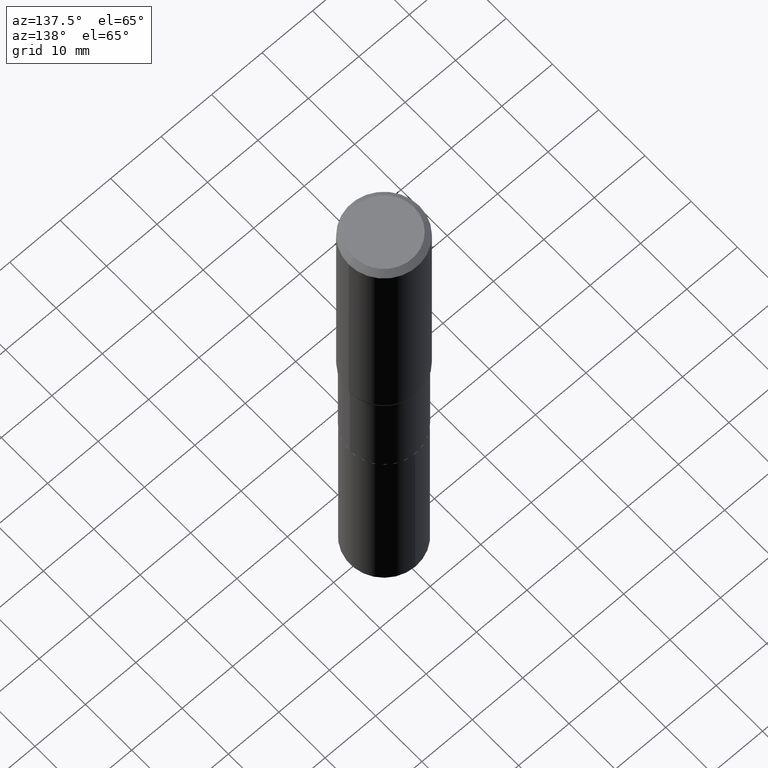
[diagram: clean part render]
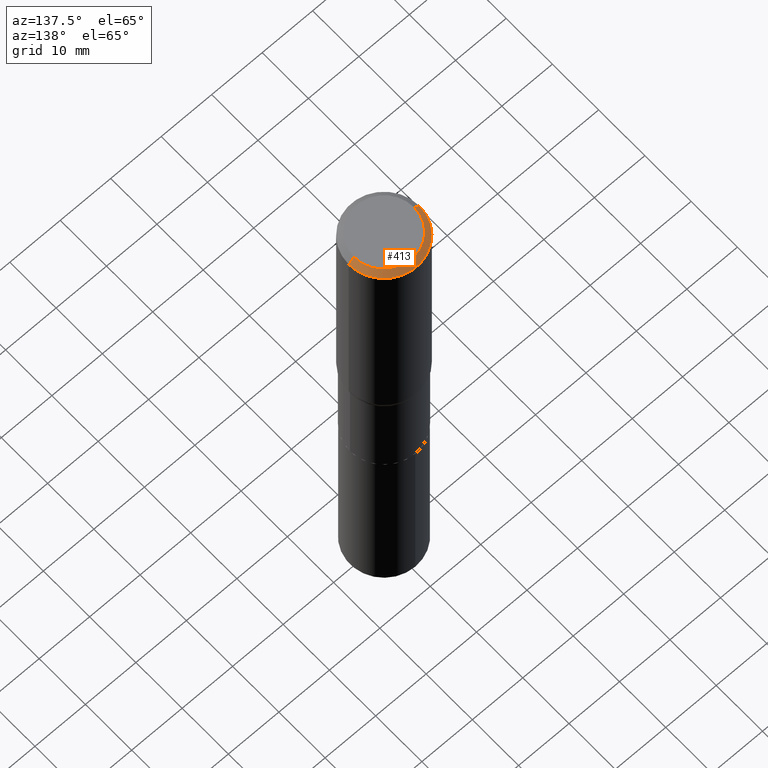
[diagram: same view with one face highlighted and labeled with its STEP entity id]
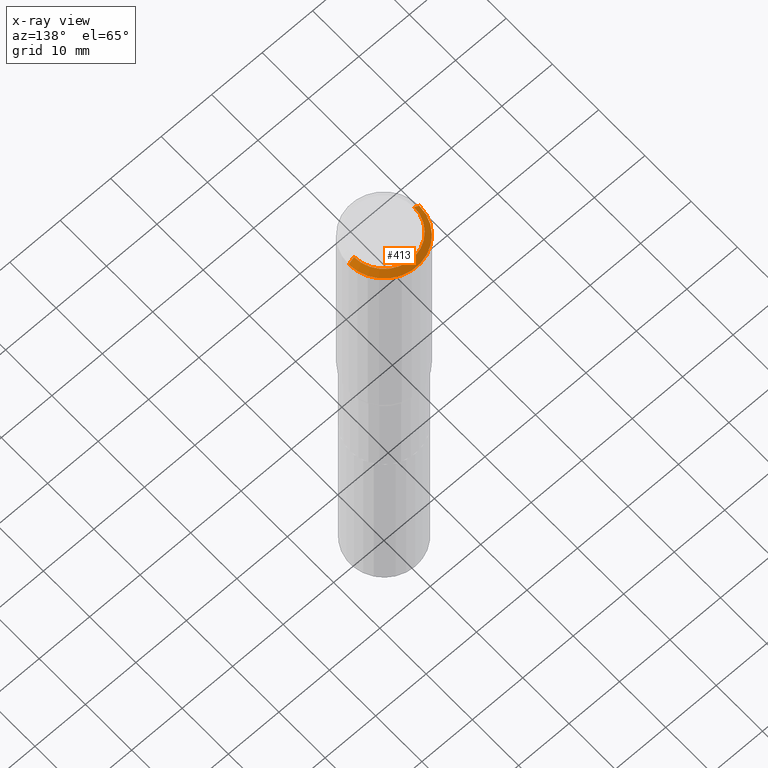
[diagram: x-ray of the same camera — body ghosted, the highlighted face saturated]
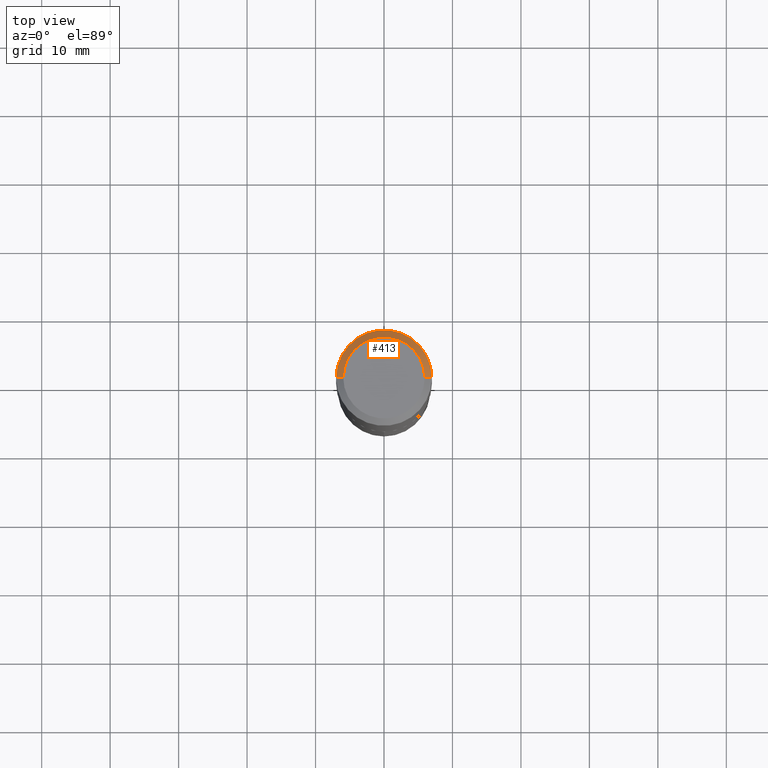
[diagram: same view with one face highlighted and labeled with its STEP entity id]
A machine part, auxiliary view. The second image highlights one B-rep face of the part: STEP entity #413.
The next image is the same camera in x-ray: the body ghosted, the highlighted face saturated — about 0% of this face is hidden behind the body in this view.
A second angle (top view) of the same face is appended — the face is thin or edge-on in the first view.
In plain terms, the highlighted conical surface has half-angle 45 deg.
Its self-contained STEP definition (entity closure, byte-faithful):
#12 = EDGE_CURVE ( 'NONE', #53, #420, #359, .T. ) ;
#19 = EDGE_CURVE ( 'NONE', #53, #399, #463, .T. ) ;
#30 = DIRECTION ( 'NONE',  ( -2.445468806185136597E-29, 3.491481338843145583E-15, 1.000000000000000000 ) ) ;
#34 = CARTESIAN_POINT ( 'NONE',  ( 0.2756000000000000116, -2.035091086733610886E-15, -0.04134000000000024461 ) ) ;
#53 = VERTEX_POINT ( 'NONE', #466 ) ;
#57 = ORIENTED_EDGE ( 'NONE', *, *, #19, .T. ) ;
#61 = DIRECTION ( 'NONE',  ( -1.000000000000000000, 6.982962677686267499E-15, 0.000000000000000000 ) ) ;
#69 = DIRECTION ( 'NONE',  ( 1.000000000000000000, -6.982962677686267499E-15, 4.876157962347795834E-29 ) ) ;
#77 = DIRECTION ( 'NONE',  ( -0.7071067811865453523, 2.468850131082234184E-15, -0.7071067811865496822 ) ) ;
#101 = CARTESIAN_POINT ( 'NONE',  ( 0.2756000000000000116, -2.068842352518111732E-15, -0.04134000000000024461 ) ) ;
#120 = LINE ( 'NONE', #299, #452 ) ;
#129 = EDGE_LOOP ( 'NONE', ( #353, #57, #203, #406 ) ) ;
#147 = AXIS2_PLACEMENT_3D ( 'NONE', #447, #352, #61 ) ;
#152 = DIRECTION ( 'NONE',  ( 0.7071067811865453523, -7.319954787623248157E-15, -0.7071067811865496822 ) ) ;
#167 = EDGE_CURVE ( 'NONE', #420, #377, #120, .T. ) ;
#173 = FACE_OUTER_BOUND ( 'NONE', #129, .T. ) ;
#174 = CARTESIAN_POINT ( 'NONE',  ( 1.010956804476941522E-30, -1.443378385477764823E-16, -0.04134000000000024461 ) ) ;
#202 = AXIS2_PLACEMENT_3D ( 'NONE', #174, #449, #354 ) ;
#203 = ORIENTED_EDGE ( 'NONE', *, *, #443, .T. ) ;
#207 = CARTESIAN_POINT ( 'NONE',  ( -0.2756000000000000116, -1.195966209894784176E-15, -0.04134000000000024461 ) ) ;
#257 = CONICAL_SURFACE ( 'NONE', #147, 0.2756000000000000116, 0.7853981633974452814 ) ;
#270 = AXIS2_PLACEMENT_3D ( 'NONE', #317, #30, #69 ) ;
#299 = CARTESIAN_POINT ( 'NONE',  ( -0.2756000000000000116, 1.780166675422558965E-15, -0.04134000000000024461 ) ) ;
#317 = CARTESIAN_POINT ( 'NONE',  ( -1.002970424325033577E-46, 1.431975951230896486E-32, 4.101342130344485961E-18 ) ) ;
#352 = DIRECTION ( 'NONE',  ( 2.445468806185136597E-29, -3.491481338843145583E-15, -1.000000000000000000 ) ) ;
#353 = ORIENTED_EDGE ( 'NONE', *, *, #12, .F. ) ;
#354 = DIRECTION ( 'NONE',  ( 1.000000000000000000, -6.982962677686267499E-15, 0.000000000000000000 ) ) ;
#359 = CIRCLE ( 'NONE', #270, 0.2342600000000000238 ) ;
#377 = VERTEX_POINT ( 'NONE', #207 ) ;
#398 = CIRCLE ( 'NONE', #202, 0.2756000000000000116 ) ;
#399 = VERTEX_POINT ( 'NONE', #101 ) ;
#406 = ORIENTED_EDGE ( 'NONE', *, *, #167, .F. ) ;
#413 = ADVANCED_FACE ( 'NONE', ( #173 ), #257, .T. ) ;
#419 = CARTESIAN_POINT ( 'NONE',  ( -0.2342600000000000238, 1.707997756148671759E-15, 4.101342130332794026E-18 ) ) ;
#420 = VERTEX_POINT ( 'NONE', #419 ) ;
#422 = VECTOR ( 'NONE', #152, 39.37007874015748143 ) ;
#443 = EDGE_CURVE ( 'NONE', #399, #377, #398, .T. ) ;
#447 = CARTESIAN_POINT ( 'NONE',  ( 1.010956804476941522E-30, -1.443378385477764823E-16, -0.04134000000000024461 ) ) ;
#449 = DIRECTION ( 'NONE',  ( -2.445468806185136597E-29, 3.491481338843145583E-15, 1.000000000000000000 ) ) ;
#452 = VECTOR ( 'NONE', #77, 39.37007874015748143 ) ;
#463 = LINE ( 'NONE', #34, #422 ) ;
#466 = CARTESIAN_POINT ( 'NONE',  ( 0.2342600000000000238, -1.821115673845785155E-15, 4.101342130356573868E-18 ) ) ;